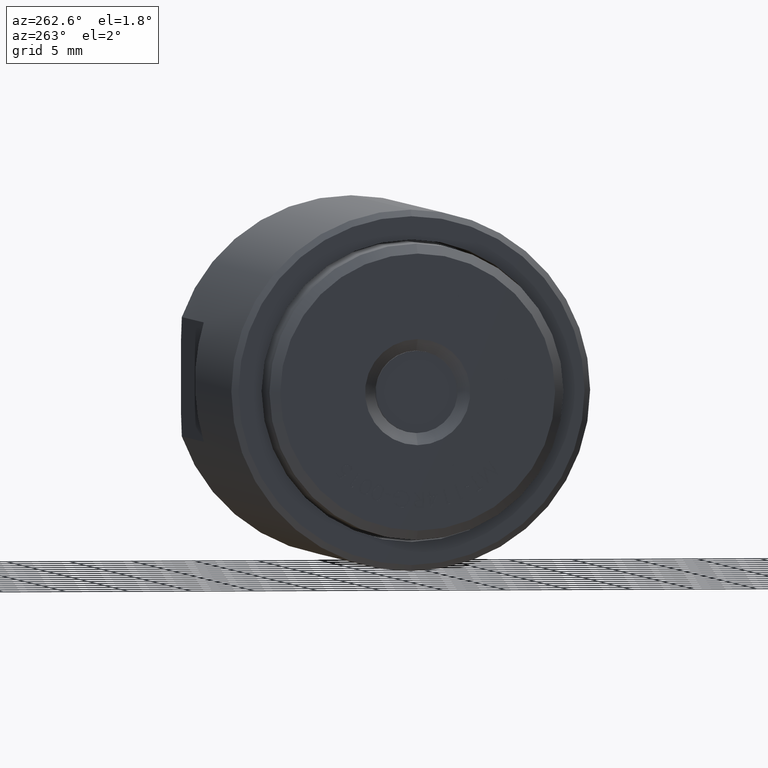
[diagram: clean part render]
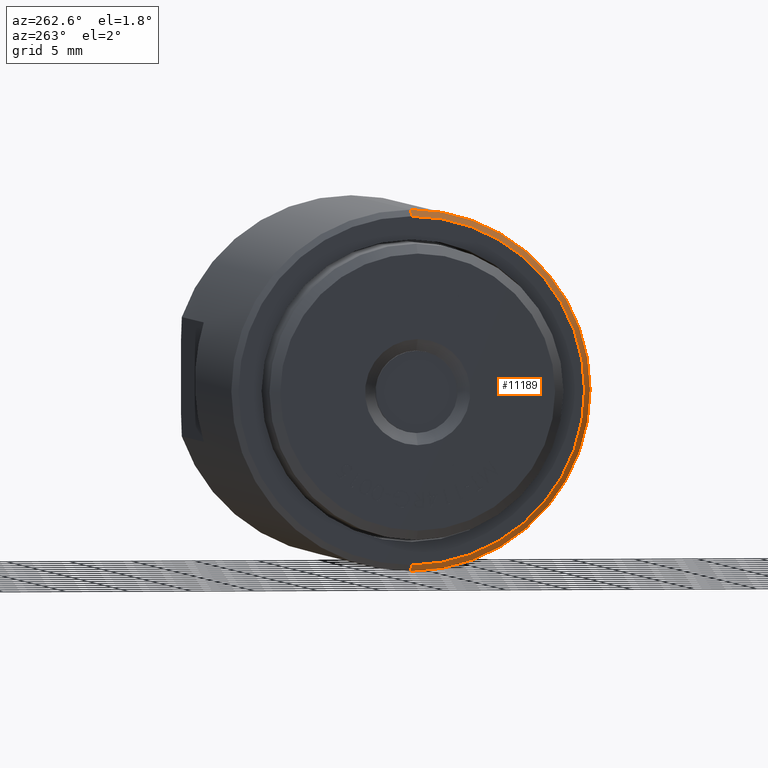
[diagram: same view with one face highlighted and labeled with its STEP entity id]
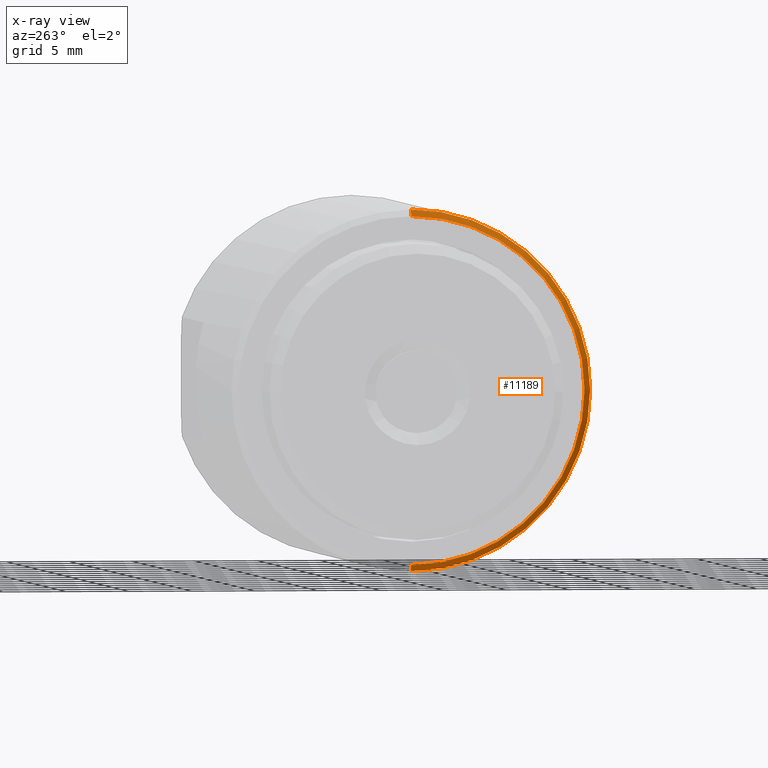
[diagram: x-ray of the same camera — body ghosted, the highlighted face saturated]
A machine part, auxiliary view. The second image highlights one B-rep face of the part: STEP entity #11189.
The next image is the same camera in x-ray: the body ghosted, the highlighted face saturated — about 0% of this face is hidden behind the body in this view.
In plain terms, the highlighted conical surface has half-angle 45 deg.
Its self-contained STEP definition (entity closure, byte-faithful):
#410 = ORIENTED_EDGE ( 'NONE', *, *, #11407, .T. ) ;
#740 = CIRCLE ( 'NONE', #7468, 0.5625499999999999945 ) ;
#991 = CARTESIAN_POINT ( 'NONE',  ( -0.2270000000000000073, 0.0000000000000000000, 0.0000000000000000000 ) ) ;
#1009 = VERTEX_POINT ( 'NONE', #10462 ) ;
#1493 = AXIS2_PLACEMENT_3D ( 'NONE', #991, #7241, #4648 ) ;
#1833 = AXIS2_PLACEMENT_3D ( 'NONE', #5448, #9122, #8948 ) ;
#2160 = EDGE_LOOP ( 'NONE', ( #2655, #9589, #410, #10342 ) ) ;
#2470 = DIRECTION ( 'NONE',  ( 0.0000000000000000000, 0.0000000000000000000, 1.000000000000000000 ) ) ;
#2655 = ORIENTED_EDGE ( 'NONE', *, *, #11792, .F. ) ;
#3791 = VECTOR ( 'NONE', #3866, 39.37007874015748854 ) ;
#3866 = DIRECTION ( 'NONE',  ( 0.7071067811865474617, 0.0000000000000000000, -0.7071067811865474617 ) ) ;
#4376 = VECTOR ( 'NONE', #6362, 39.37007874015748854 ) ;
#4648 = DIRECTION ( 'NONE',  ( 0.0000000000000000000, 0.0000000000000000000, -1.000000000000000000 ) ) ;
#4825 = CARTESIAN_POINT ( 'NONE',  ( -0.2270000000000000073, 0.0000000000000000000, -0.5425499999999999767 ) ) ;
#4879 = LINE ( 'NONE', #4825, #3791 ) ;
#5053 = EDGE_CURVE ( 'NONE', #1009, #5808, #740, .T. ) ;
#5176 = DIRECTION ( 'NONE',  ( -1.000000000000000000, -0.0000000000000000000, -0.0000000000000000000 ) ) ;
#5271 = CIRCLE ( 'NONE', #1833, 0.5425499999999999767 ) ;
#5448 = CARTESIAN_POINT ( 'NONE',  ( -0.2270000000000000073, 0.0000000000000000000, 0.0000000000000000000 ) ) ;
#5743 = VERTEX_POINT ( 'NONE', #10667 ) ;
#5808 = VERTEX_POINT ( 'NONE', #11880 ) ;
#6362 = DIRECTION ( 'NONE',  ( 0.7071067811865474617, 8.659560562354932858E-17, 0.7071067811865474617 ) ) ;
#6617 = EDGE_CURVE ( 'NONE', #5743, #8969, #5271, .T. ) ;
#7241 = DIRECTION ( 'NONE',  ( 1.000000000000000000, 0.0000000000000000000, 0.0000000000000000000 ) ) ;
#7468 = AXIS2_PLACEMENT_3D ( 'NONE', #11444, #5176, #2470 ) ;
#8948 = DIRECTION ( 'NONE',  ( 0.0000000000000000000, 0.0000000000000000000, 1.000000000000000000 ) ) ;
#8969 = VERTEX_POINT ( 'NONE', #9928 ) ;
#9122 = DIRECTION ( 'NONE',  ( -1.000000000000000000, -0.0000000000000000000, -0.0000000000000000000 ) ) ;
#9589 = ORIENTED_EDGE ( 'NONE', *, *, #6617, .F. ) ;
#9803 = LINE ( 'NONE', #10822, #4376 ) ;
#9928 = CARTESIAN_POINT ( 'NONE',  ( -0.2270000000000000073, 6.766785888688700385E-17, 0.5425499999999999767 ) ) ;
#10342 = ORIENTED_EDGE ( 'NONE', *, *, #5053, .T. ) ;
#10462 = CARTESIAN_POINT ( 'NONE',  ( -0.2070000000000000173, 6.889250568603435435E-17, -0.5625499999999999945 ) ) ;
#10518 = CONICAL_SURFACE ( 'NONE', #1493, 0.5425499999999999767, 0.7853981633974482790 ) ;
#10667 = CARTESIAN_POINT ( 'NONE',  ( -0.2270000000000000073, 0.0000000000000000000, -0.5425499999999999767 ) ) ;
#10822 = CARTESIAN_POINT ( 'NONE',  ( -0.2270000000000000073, 6.644321208773965336E-17, 0.5425499999999999767 ) ) ;
#11189 = ADVANCED_FACE ( 'NONE', ( #11816 ), #10518, .T. ) ;
#11407 = EDGE_CURVE ( 'NONE', #5743, #1009, #4879, .T. ) ;
#11444 = CARTESIAN_POINT ( 'NONE',  ( -0.2070000000000000173, 0.0000000000000000000, 0.0000000000000000000 ) ) ;
#11792 = EDGE_CURVE ( 'NONE', #8969, #5808, #9803, .T. ) ;
#11816 = FACE_OUTER_BOUND ( 'NONE', #2160, .T. ) ;
#11880 = CARTESIAN_POINT ( 'NONE',  ( -0.2070000000000000173, 0.0000000000000000000, 0.5625499999999999945 ) ) ;